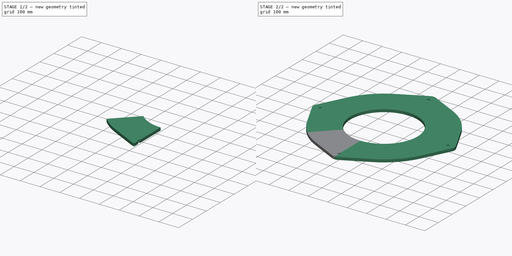
[diagram: build sequence overview — one tinted view per stage of 2, left to right]
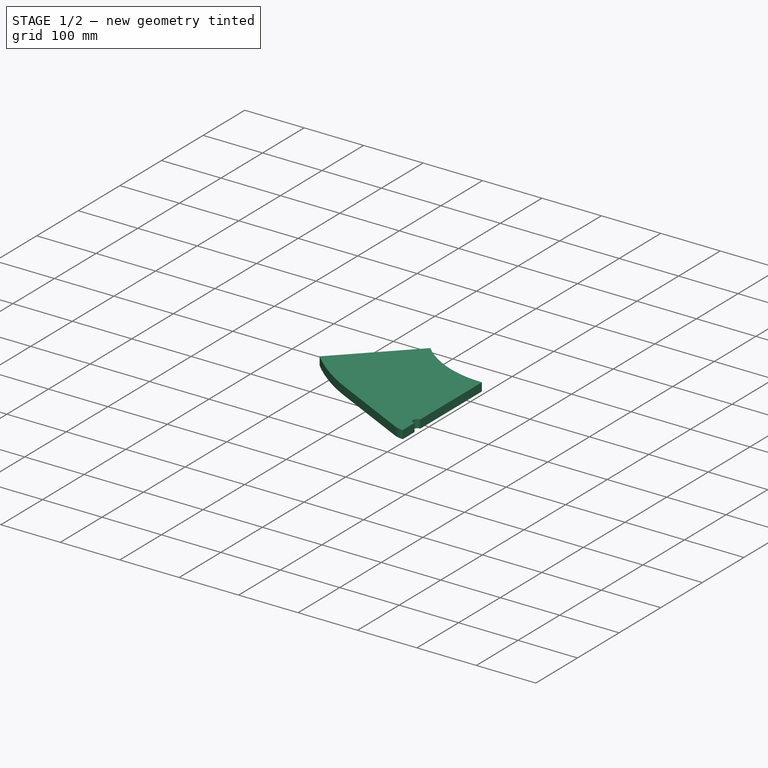
[diagram: stage 1 of 2 — iso view after this stage's code; geometry added in this stage tinted green]
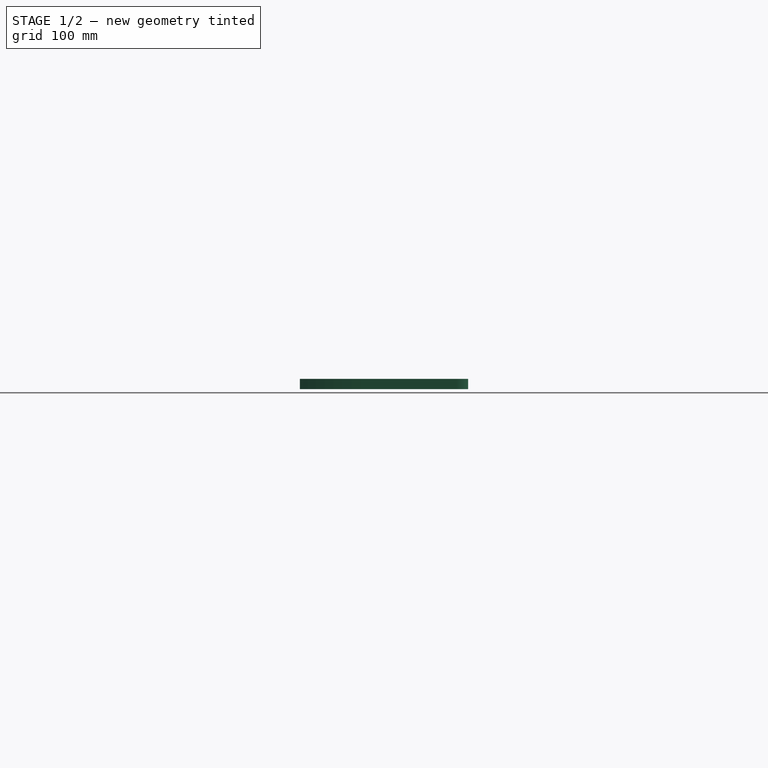
[diagram: stage 1 of 2 — front view after this stage's code; geometry added in this stage tinted green]
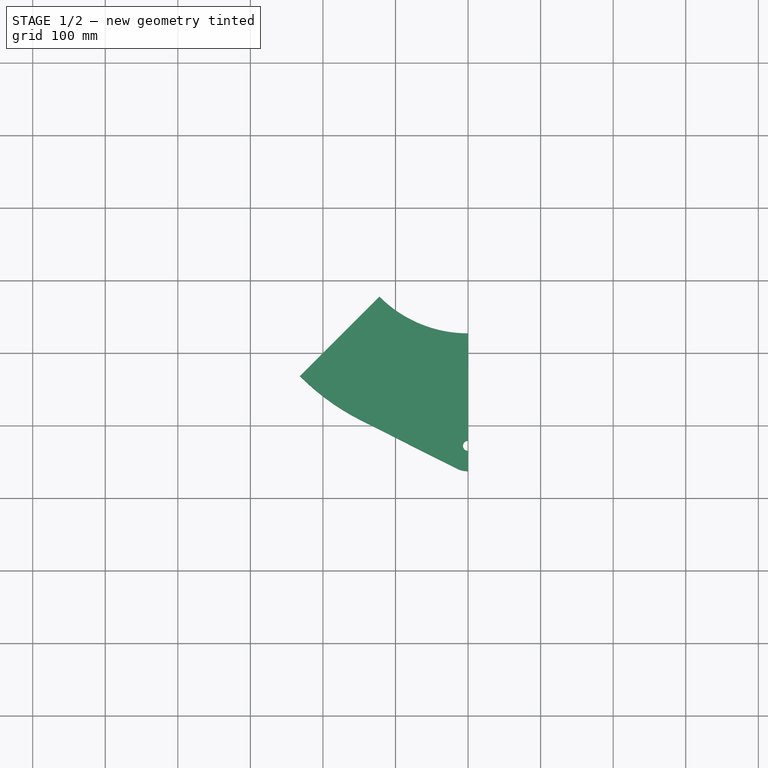
[diagram: stage 1 of 2 — top view after this stage's code; geometry added in this stage tinted green]
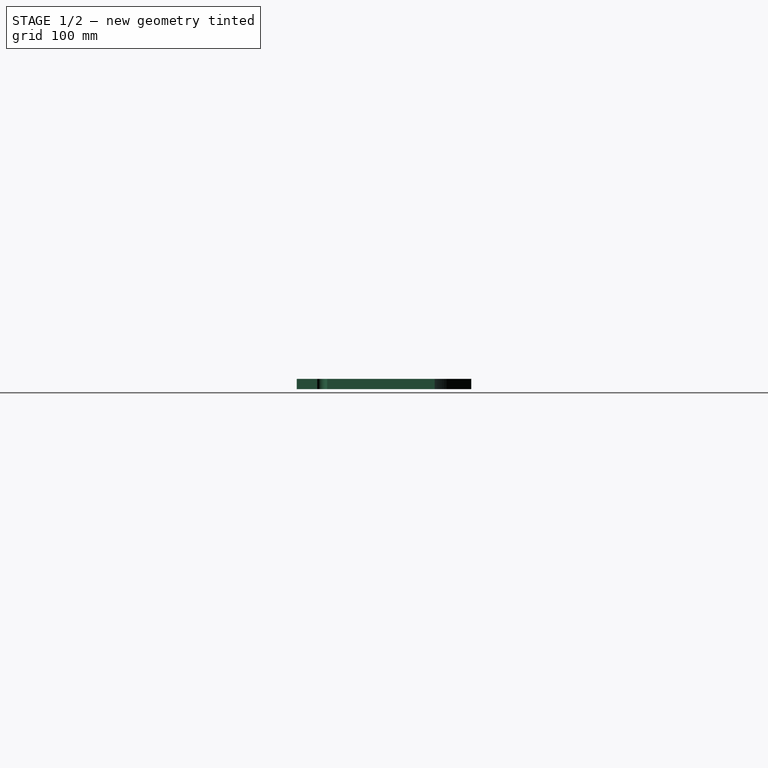
[diagram: stage 1 of 2 — right view after this stage's code; geometry added in this stage tinted green]
FCSTD DOCUMENT  (FreeCAD 0.21R33771 (Git))
Label: Stator_ResinCast_Circular
License: All rights reserved
LicenseURL: http://en.wikipedia.org/wiki/All_rights_reserved
objects: Spreadsheet::Sheet×1, PartDesign::Plane×1, Sketcher::SketchObject×1, PartDesign::Pad×1, PartDesign::Mirrored×1, PartDesign::PolarPattern×1, PartDesign::MultiTransform×1, PartDesign::Body×1, Part::Refine×1
note: 9 computed .brp shape members not serialized (recipe doc carries the construction recipe); baked Part::Feature solids carry a one-line shape summary decoded from their .brp
EXTERNAL_REF file=../../Master_of_Puppets.FCStd obj=Alternator
EXTERNAL_REF file=../../Master_of_Puppets.FCStd obj=Spreadsheet

FEATURE [Spreadsheet::Sheet] Spreadsheet
  cells = A1='Inputs; A2='StatorThickness; B2='HolesRadius; C2='CalculatedWindTurbineShape; A3(StatorThickness)==Master_of_Puppets#Spreadsheet.StatorThickness; B3(HolesRadius)==Master_of_Puppets#Alternator.HolesRadius; C3(CalculatedWindTurbineShape)==Master_of_Puppets#Spreadsheet.CalculatedWindTurbineShape; A4='StatorHolesCircumradius; B4='StatorInnerHoleRadius; C4='NumberOfStatorHoles; A5(StatorHolesCircumradius)==Master_of_Puppets#Alternator.StatorHolesCircumradius; B5(StatorInnerHoleRadius)==Master_of_Puppets#Alternator.StatorInnerHoleRadius; C5(NumberOfStatorHoles)==Master_of_Puppets#Alternator.NumberOfStatorHoles; A6='EarSize; B6='EarAngle; A7(EarSize)==Master_of_Puppets#Alternator.EarSize; B7(EarAngle)==Master_of_Puppets#Alternator.EarAngle; A8='Angle; A9='TShapeAngle; B9='HShapeAngle; C9='Angle; A10(TShapeAngle)=180; B10(HShapeAngle)=45; C10(Angle)==CalculatedWindTurbineShape == <<T>> ? TShapeAngle : HShapeAngle
FEATURE [PartDesign::Plane] DatumPlane
  Length = 870.456
  MapMode = 5
  ResizeMode = 0
  Support = -> [XY_Plane001]
  Width = 870.456
FEATURE [Sketcher::SketchObject] Sketch003
  FullyConstrained = true
  MapMode = 5
  Support = -> [DatumPlane]
  expr: Constraints[10] = Spreadsheet.StatorInnerHoleRadius
  expr: Constraints[12] = Spreadsheet.EarAngle
  expr: Constraints[23] = Spreadsheet.HolesRadius
  expr: Constraints[24] = Spreadsheet.EarSize
  expr: Constraints[3] = Spreadsheet.StatorHolesCircumradius
  sketch-geometry (15):
    g0: Circle CenterX=0 CenterY=0 CenterZ=0 NormalX=0 NormalY=0 NormalZ=1 AngleXU=0 Radius=327.69
    g1: LineSegment StartX=0 StartY=0 StartZ=0 EndX=0 EndY=-327.69 EndZ=0
    g2: Circle CenterX=0 CenterY=-327.69 CenterZ=0 NormalX=0 NormalY=0 NormalZ=1 AngleXU=0 Radius=35
    g3: LineSegment StartX=-15.7387 StartY=-358.952 StartZ=0 EndX=-147.354 EndY=-292.69 EndZ=0
    g4: ArcOfCircle CenterX=0 CenterY=-327.69 CenterZ=0 NormalX=0 NormalY=0 NormalZ=1 AngleXU=0 Radius=35 StartAngle=4.24598 EndAngle=4.71239
    g5: Circle CenterX=0 CenterY=0 CenterZ=0 NormalX=0 NormalY=0 NormalZ=1 AngleXU=0 Radius=172.71
    g6: LineSegment StartX=0 StartY=0 StartZ=0 EndX=-231.712 EndY=-231.712 EndZ=0
    g7: LineSegment StartX=0 StartY=0 StartZ=0 EndX=231.712 EndY=-231.712 EndZ=0
    g8: ArcOfCircle CenterX=0 CenterY=0 CenterZ=0 NormalX=0 NormalY=0 NormalZ=1 AngleXU=0 Radius=327.69 StartAngle=3.92699 EndAngle=4.24599
    g9: ArcOfCircle CenterX=0 CenterY=0 CenterZ=0 NormalX=0 NormalY=0 NormalZ=1 AngleXU=0 Radius=172.71 StartAngle=3.92699 EndAngle=4.71239
    g10: LineSegment StartX=-231.712 StartY=-231.712 StartZ=0 EndX=-122.125 EndY=-122.125 EndZ=0
    g11: Circle CenterX=0 CenterY=-327.69 CenterZ=0 NormalX=0 NormalY=0 NormalZ=1 AngleXU=0 Radius=7
    g12: LineSegment StartX=-1.3e-15 StartY=-362.69 StartZ=0 EndX=-1.3e-15 EndY=-334.69 EndZ=0
    g13: LineSegment StartX=4e-16 StartY=-320.69 StartZ=0 EndX=4e-16 EndY=-172.71 EndZ=0
    g14: ArcOfCircle CenterX=0 CenterY=-327.69 CenterZ=0 NormalX=0 NormalY=0 NormalZ=1 AngleXU=0 Radius=7 StartAngle=1.5708 EndAngle=4.71239
  constraints (38):
    c: Coincident(g0,g-1)
    c: Coincident(g1,g-1)
    c: Vertical(g1)
    c: Radius(g0) = 327.69
    c: Coincident(g2,g1)
    c: PointOnObject(g4,g2)
    c: Tangent(g3,g2)
    c: Coincident(g4,g1)
    c: Coincident(g4,g3)
    c: Coincident(g5,g-1)
    c: Radius(g5) = 172.71
    c: PointOnObject(g4,g0)
    c: Angle(g6,g7) = 1.5708
    c: Coincident(g8,g5)
    c: Coincident(g8,g6)
    c: Coincident(g8,g3)
    c: Coincident(g9,g5)
    c: PointOnObject(g9,g6)
    c: Coincident(g7,g6)
    c: Coincident(g6,g8)
    c: Coincident(g10,g8)
    c: Coincident(g10,g9)
    c: Coincident(g11,g4)
    c: Radius(g11) = 7
    c: Radius(g2) = 35
    c: PointOnObject(g9,g1)
    c: PointOnObject(g9,g5)
    c: Symmetric(g8,g7,g1)
    c: Tangent(g3,g0) = 1.5708
    c: Coincident(g12,g4)
    c: PointOnObject(g12,g11)
    c: Vertical(g12)
    c: Coincident(g13,g9)
    c: Vertical(g13)
    c: Coincident(g14,g4)
    c: Coincident(g14,g13)
    c: Coincident(g14,g12)
    c: PointOnObject(g12,g-2)
FEATURE [PartDesign::Pad] Pad
  Direction = (0,0,1)
  Length = 14
  Length2 = 100
  Profile = -> Sketch003
  Type = 0
  expr: Length = Spreadsheet.StatorThickness
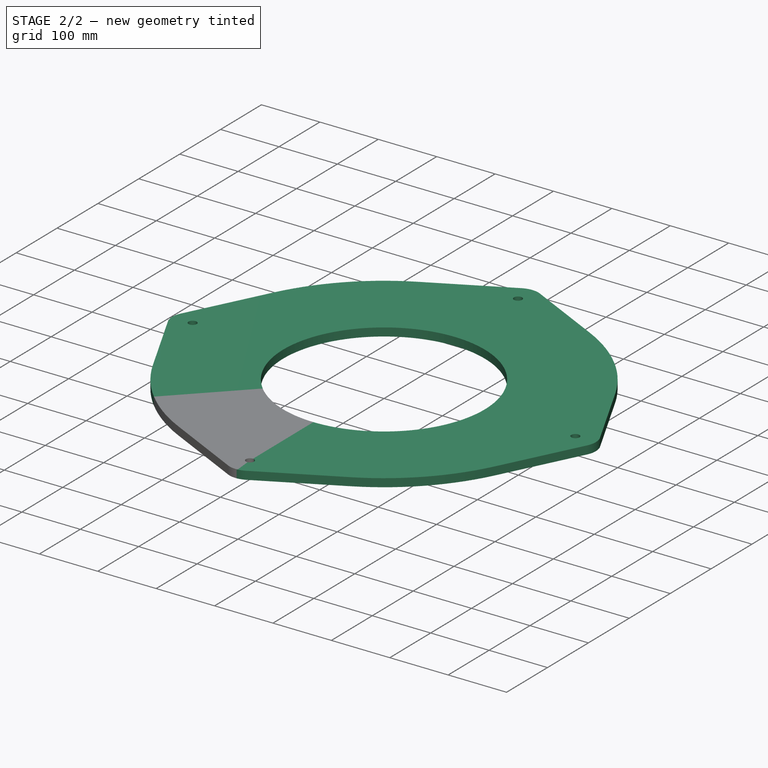
[diagram: stage 2 of 2 — iso view after this stage's code; geometry added in this stage tinted green]
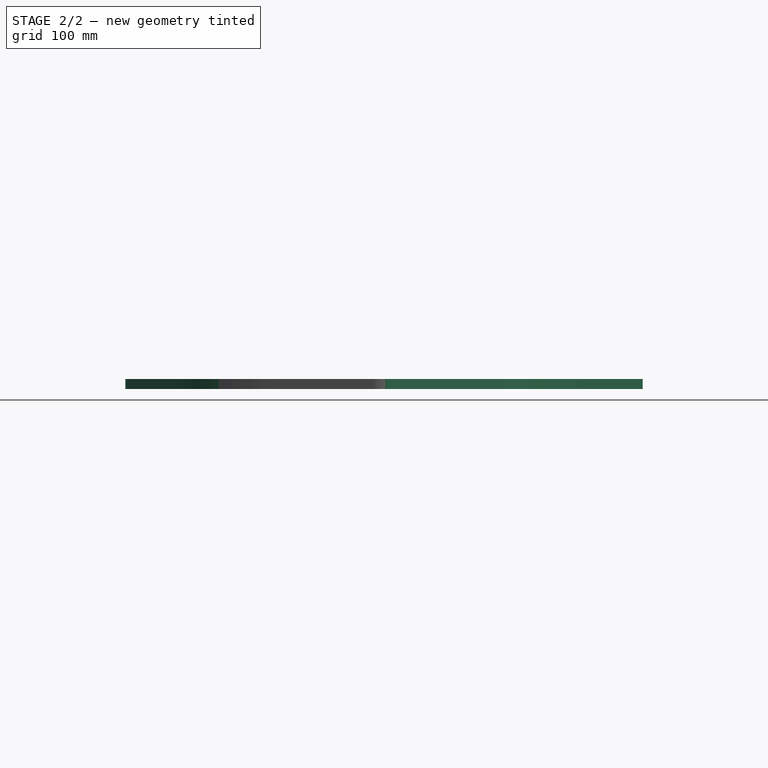
[diagram: stage 2 of 2 — front view after this stage's code; geometry added in this stage tinted green]
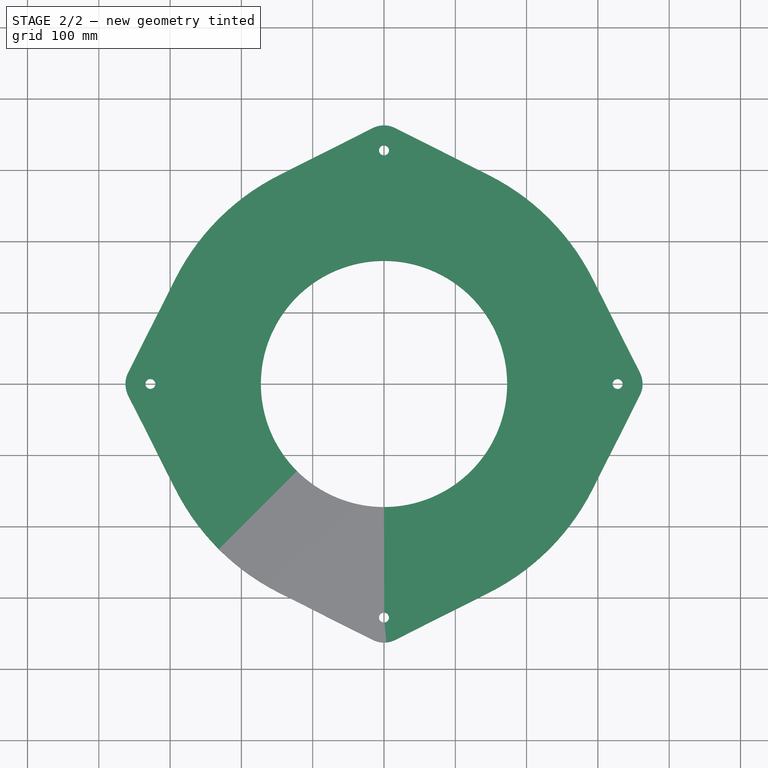
[diagram: stage 2 of 2 — top view after this stage's code; geometry added in this stage tinted green]
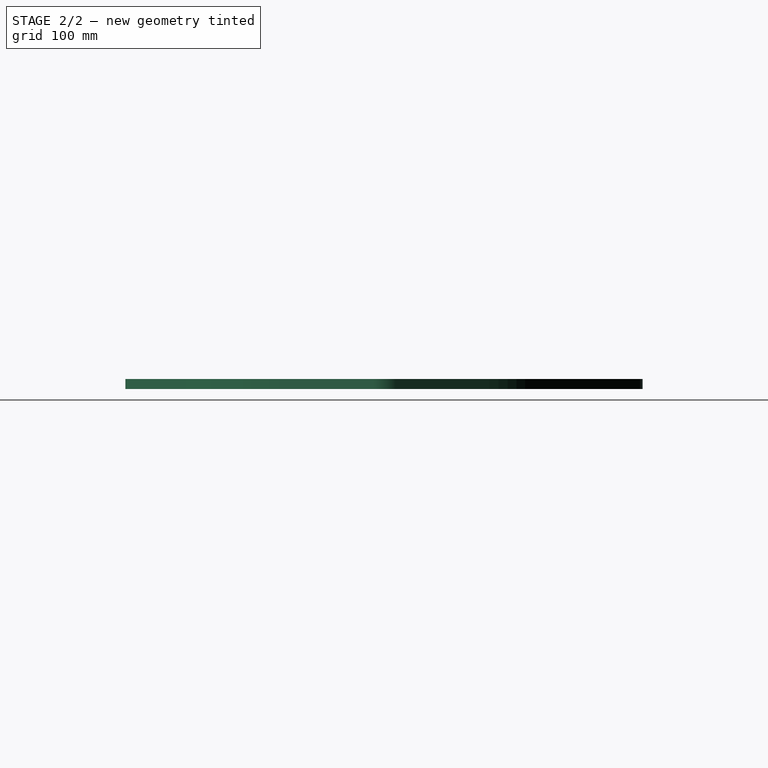
[diagram: stage 2 of 2 — right view after this stage's code; geometry added in this stage tinted green]
FEATURE [PartDesign::Mirrored] Mirrored
  MirrorPlane = -> Sketch003 [V_Axis]
FEATURE [PartDesign::PolarPattern] PolarPattern
  Angle = 360
  Axis = -> Z_Axis001
  Occurrences = 4
  expr: Occurrences = Spreadsheet.NumberOfStatorHoles
FEATURE [PartDesign::MultiTransform] MultiTransform
  BaseFeature = -> Pad
  Originals = -> [Pad]
  Transformations = -> [Mirrored,PolarPattern]
FEATURE [PartDesign::Body] PadBody  label="Body"
  Group = -> [DatumPlane,Sketch003,Pad,MultiTransform,Mirrored,PolarPattern]
  Origin = -> Origin001
  Tip = -> MultiTransform
FEATURE [Part::Refine] PadBody001  label="Stator_ResinCast"
  Placement = pos=(0,0,0) rot=(0,0,1;0.785398rad)
  Source = -> PadBody
  expr: .Placement.Rotation.Angle = Spreadsheet.Angle
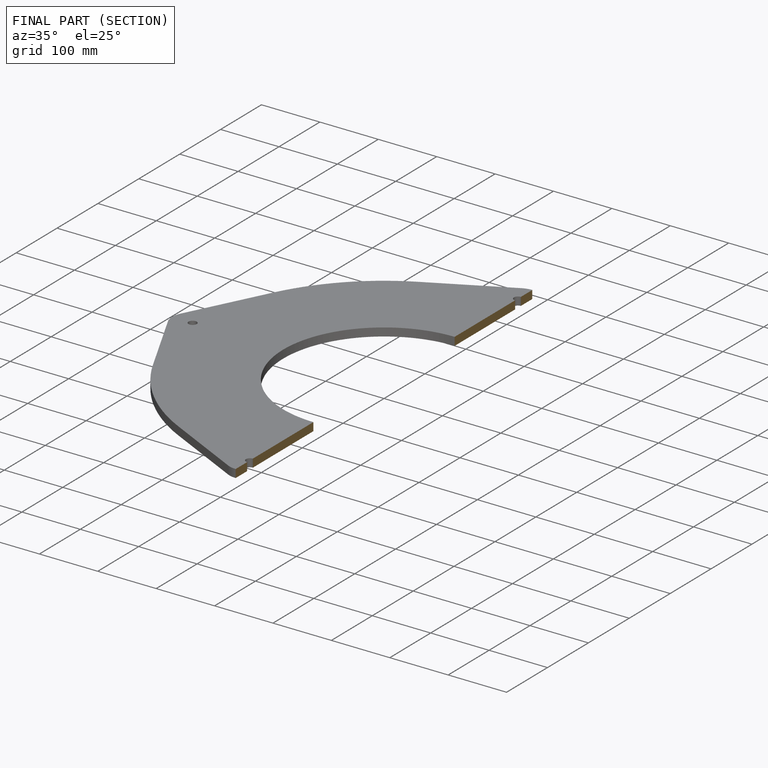
[diagram: finished part — half-section view (interior)]
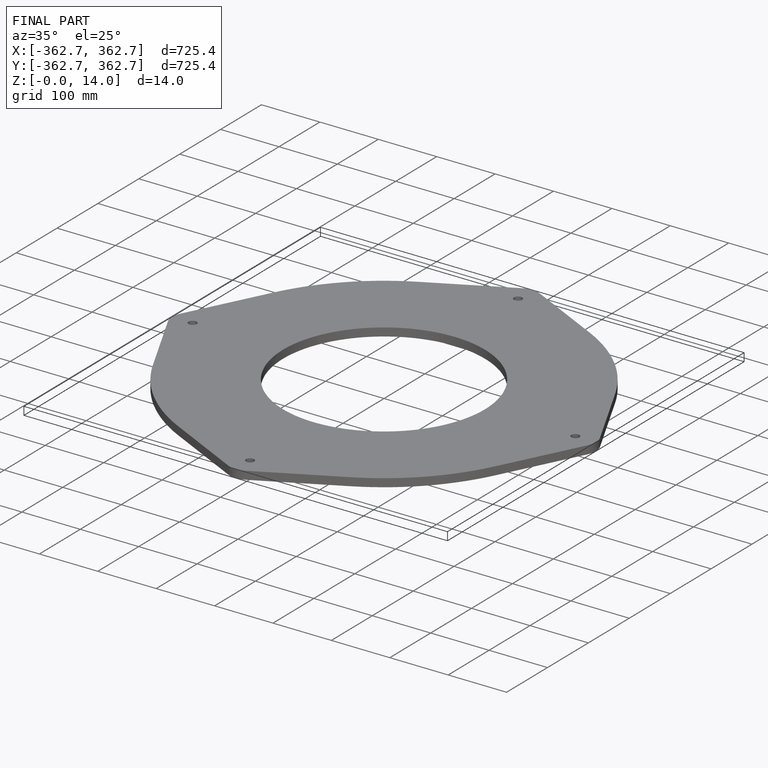
[diagram: finished part — iso view with bounding-box wireframe]
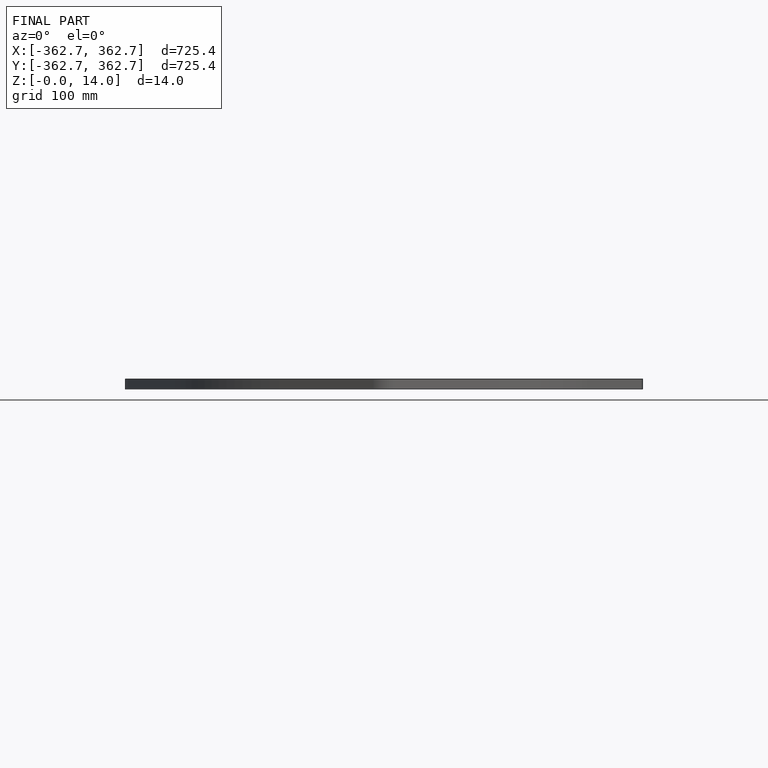
[diagram: finished part — front view with bounding-box wireframe]
